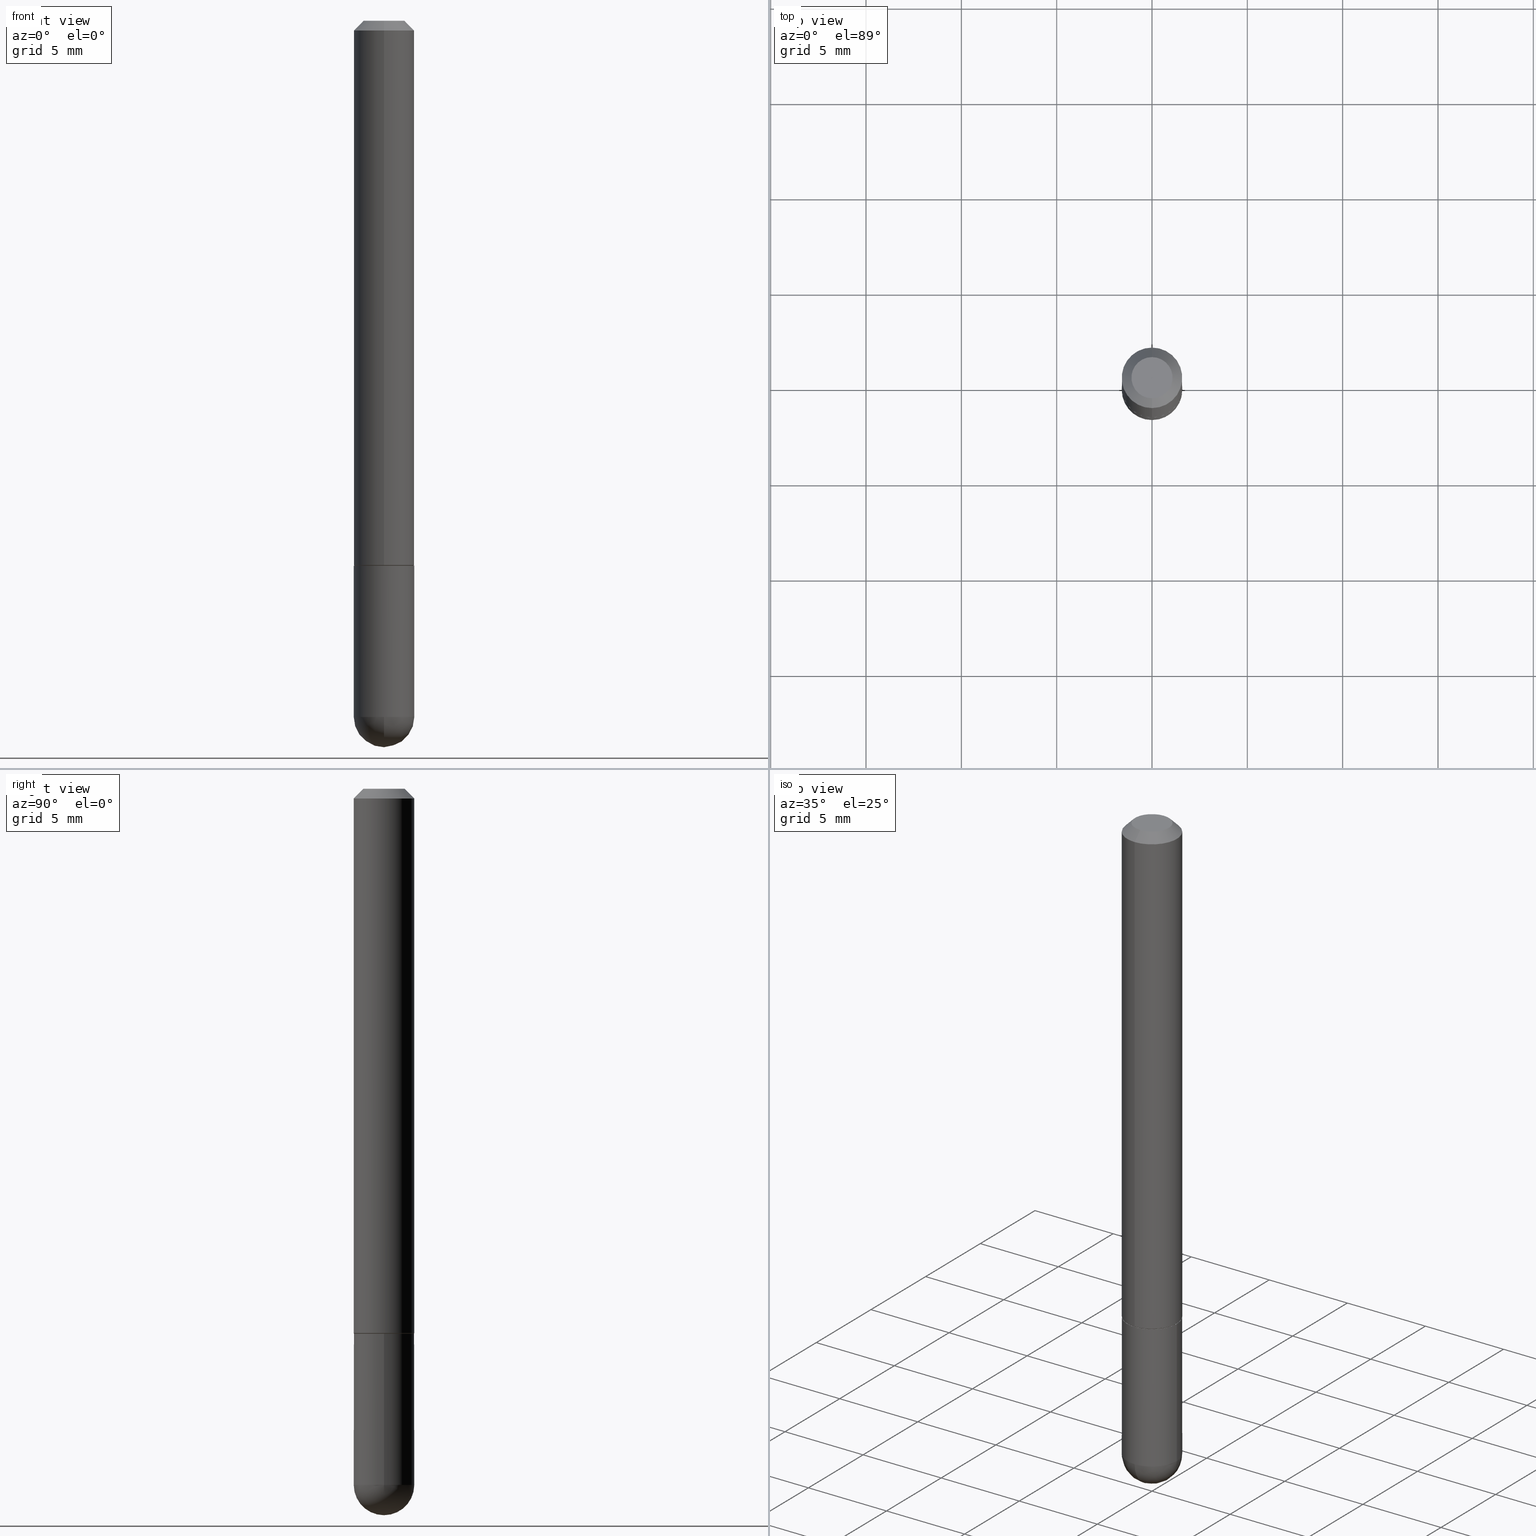
[diagram: canonical four-view strip — front | top / right | iso, engineering-drawing reading convention]
A machine part, canonical four-view strip (front | top / right | iso — engineering-drawing reading convention). The complete STEP part file that produces these views, byte-faithful:
ISO-10303-21;
HEADER;
FILE_DESCRIPTION (( 'STEP AP203' ),
    '1' );
FILE_NAME ('30378.STEP',
    '2024-02-21T16:37:49',
    ( '' ),
    ( '' ),
    'SwSTEP 2.0',
    'SolidWorks 2023',
    '' );
FILE_SCHEMA (( 'CONFIG_CONTROL_DESIGN' ));
ENDSEC;

DATA;
#1 = AXIS2_PLACEMENT_3D ( 'NONE', #296, #231, #124 ) ;
#2 = LINE ( 'NONE', #381, #290 ) ;
#3 = CARTESIAN_POINT ( 'NONE',  ( 2.729117726778545720E-29, -3.959471422352026029E-15, -1.124999999999999778 ) ) ;
#4 = CARTESIAN_POINT ( 'NONE',  ( 4.369837824924891688E-16, 0.06149999999999608558, -1.125000000000000222 ) ) ;
#5 = MANIFOLD_SOLID_BREP ( 'Body-Move/Copy2[1]', #128 ) ;
#6 = AXIS2_PLACEMENT_3D ( 'NONE', #96, #34, #383 ) ;
#7 = DIRECTION ( 'NONE',  ( -2.445468806185136597E-29, 3.491481338843145583E-15, 1.000000000000000000 ) ) ;
#8 = AXIS2_PLACEMENT_3D ( 'NONE', #166, #7, #332 ) ;
#9 = ORIENTED_EDGE ( 'NONE', *, *, #175, .F. ) ;
#10 = DIRECTION ( 'NONE',  ( 1.000000000000000000, 0.000000000000000000, 0.000000000000000000 ) ) ;
#11 = ORIENTED_EDGE ( 'NONE', *, *, #81, .T. ) ;
#12 = CALENDAR_DATE ( 2024, 21, 2 ) ;
#13 = EDGE_LOOP ( 'NONE', ( #179, #47, #108, #268 ) ) ;
#14 = CC_DESIGN_PERSON_AND_ORGANIZATION_ASSIGNMENT ( #101, #339, ( #269 ) ) ;
#15 = EDGE_LOOP ( 'NONE', ( #39, #11, #393, #261, #399 ) ) ;
#16 = AXIS2_PLACEMENT_3D ( 'NONE', #382, #95, #224 ) ;
#17 = LOCAL_TIME ( 11, 37, 49.00000000000000000, #70 ) ;
#18 = LINE ( 'NONE', #366, #71 ) ;
#19 = ORIENTED_EDGE ( 'NONE', *, *, #175, .T. ) ;
#20 = APPROVAL_DATE_TIME ( #312, #98 ) ;
#21 = VERTEX_POINT ( 'NONE', #148 ) ;
#22 = DIRECTION ( 'NONE',  ( -4.937700262165222518E-15, -0.7071067811866417196, 0.7071067811864533148 ) ) ;
#23 = CIRCLE ( 'NONE', #137, 0.06150000000000004768 ) ;
#24 = LOCAL_TIME ( 11, 37, 49.00000000000000000, #240 ) ;
#25 = DIRECTION ( 'NONE',  ( -6.982962677686265922E-15, -1.000000000000000000, 4.442029257990668187E-15 ) ) ;
#26 = CARTESIAN_POINT ( 'NONE',  ( -3.601761448830038135E-16, -0.04249999999999968386, 4.026143430372425824E-16 ) ) ;
#27 = CC_DESIGN_PERSON_AND_ORGANIZATION_ASSIGNMENT ( #387, #157, ( #186 ) ) ;
#28 = CARTESIAN_POINT ( 'NONE',  ( 2.729117726778545720E-29, -3.959471422352026029E-15, -1.124999999999999778 ) ) ;
#29 = CIRCLE ( 'NONE', #123, 0.06250000000000001388 ) ;
#30 = APPROVAL_PERSON_ORGANIZATION ( #78, #98, #143 ) ;
#31 = DIRECTION ( 'NONE',  ( 6.982962677686265922E-15, 1.000000000000000000, -4.370956789862807739E-15 ) ) ;
#32 = CYLINDRICAL_SURFACE ( 'NONE', #194, 0.06249999999999997918 ) ;
#33 = PERSON_AND_ORGANIZATION ( #255, #105 ) ;
#34 = DIRECTION ( 'NONE',  ( -2.425882423803151845E-29, 3.519530153201801222E-15, 1.000000000000000000 ) ) ;
#35 = AXIS2_PLACEMENT_3D ( 'NONE', #295, #350, #31 ) ;
#36 =( GEOMETRIC_REPRESENTATION_CONTEXT ( 3 ) GLOBAL_UNCERTAINTY_ASSIGNED_CONTEXT ( ( #213 ) ) GLOBAL_UNIT_ASSIGNED_CONTEXT ( ( #168, #239, #49 ) ) REPRESENTATION_CONTEXT ( 'NONE', 'WORKASPACE' ) );
#37 = CARTESIAN_POINT ( 'NONE',  ( 0.06249999999999995143, -4.909895632748172453E-15, -1.437500000000000222 ) ) ;
#38 = DIRECTION ( 'NONE',  ( -6.982962677686265922E-15, -1.000000000000000000, 4.442029257990668187E-15 ) ) ;
#39 = ORIENTED_EDGE ( 'NONE', *, *, #390, .T. ) ;
#40 = APPROVAL_DATE_TIME ( #135, #191 ) ;
#41 = CONICAL_SURFACE ( 'NONE', #302, 0.06249999999999995143, 0.7853981633974469467 ) ;
#42 = APPROVAL_PERSON_ORGANIZATION ( #360, #191, #362 ) ;
#43 = ADVANCED_FACE ( 'NONE', ( #89 ), #317, .T. ) ;
#44 = APPROVAL_STATUS ( 'not_yet_approved' ) ;
#45 = ORIENTED_EDGE ( 'NONE', *, *, #327, .F. ) ;
#46 = LENGTH_MEASURE_WITH_UNIT ( LENGTH_MEASURE( 0.02539999999999999897 ), #141 );
#47 = ORIENTED_EDGE ( 'NONE', *, *, #346, .T. ) ;
#48 = ADVANCED_FACE ( 'NONE', ( #219 ), #41, .T. ) ;
#49 =( NAMED_UNIT ( * ) SI_UNIT ( $, .STERADIAN. ) SOLID_ANGLE_UNIT ( ) );
#50 = CIRCLE ( 'NONE', #201, 0.06250000000000018041 ) ;
#51 = ORIENTED_EDGE ( 'NONE', *, *, #329, .F. ) ;
#52 = COORDINATED_UNIVERSAL_TIME_OFFSET ( 5, 0, .BEHIND. ) ;
#53 = ORIENTED_EDGE ( 'NONE', *, *, #346, .F. ) ;
#54 = CYLINDRICAL_SURFACE ( 'NONE', #394, 0.06249999999999997918 ) ;
#55 = LINE ( 'NONE', #218, #284 ) ;
#56 = AXIS2_PLACEMENT_3D ( 'NONE', #248, #373, #343 ) ;
#57 = AXIS2_PLACEMENT_3D ( 'NONE', #305, #199, #330 ) ;
#58 = DIRECTION ( 'NONE',  ( -2.425882423803152125E-29, 3.519530153201801222E-15, 1.000000000000000000 ) ) ;
#59 = CARTESIAN_POINT ( 'NONE',  ( 4.851764847606321206E-31, -7.039060306403626060E-17, -0.02000000000000006981 ) ) ;
#60 = CARTESIAN_POINT ( 'NONE',  ( 4.364351673554192795E-16, 0.06249999999999608646, -1.125000000000000222 ) ) ;
#61 = VECTOR ( 'NONE', #22, 39.37007874015748143 ) ;
#62 = CARTESIAN_POINT ( 'NONE',  ( -4.294522046776783901E-16, -0.06150000000000400979, -1.124999999999999556 ) ) ;
#63 = DIRECTION ( 'NONE',  ( -2.445468806185136597E-29, 3.491481338843145583E-15, 1.000000000000000000 ) ) ;
#64 = EDGE_CURVE ( 'NONE', #337, #335, #185, .T. ) ;
#65 = PLANE ( 'NONE',  #263 ) ;
#66 = EDGE_LOOP ( 'NONE', ( #51, #19, #367, #131 ) ) ;
#67 = FACE_OUTER_BOUND ( 'NONE', #241, .T. ) ;
#68 = DIRECTION ( 'NONE',  ( 0.000000000000000000, 0.000000000000000000, 1.000000000000000000 ) ) ;
#69 = EDGE_LOOP ( 'NONE', ( #234, #102 ) ) ;
#70 = COORDINATED_UNIVERSAL_TIME_OFFSET ( 5, 0, .BEHIND. ) ;
#71 = VECTOR ( 'NONE', #202, 39.37007874015748143 ) ;
#72 = VERTEX_POINT ( 'NONE', #402 ) ;
#73 = DIRECTION ( 'NONE',  ( -6.982962677686265922E-15, -1.000000000000000000, 3.519530153201801222E-15 ) ) ;
#74 = ORIENTED_EDGE ( 'NONE', *, *, #319, .T. ) ;
#75 = ADVANCED_FACE ( 'NONE', ( #182 ), #214, .T. ) ;
#76 = SHAPE_DEFINITION_REPRESENTATION ( #183, #276 ) ;
#77 = ORIENTED_EDGE ( 'NONE', *, *, #390, .F. ) ;
#78 = PERSON_AND_ORGANIZATION ( #255, #105 ) ;
#79 = VERTEX_POINT ( 'NONE', #283 ) ;
#80 = CARTESIAN_POINT ( 'NONE',  ( 3.666055405785279275E-16, 0.04249999999999968386, 1.034542800150916889E-16 ) ) ;
#81 = EDGE_CURVE ( 'NONE', #364, #337, #55, .T. ) ;
#82 = CARTESIAN_POINT ( 'NONE',  ( -4.364351673553918666E-16, -0.06250000000000002776, 2.199706345751126750E-16 ) ) ;
#83 = CARTESIAN_POINT ( 'NONE',  ( 4.405364961712898701E-16, 0.06149999999999608558, -1.125000000000000222 ) ) ;
#84 = CC_DESIGN_PERSON_AND_ORGANIZATION_ASSIGNMENT ( #206, #197, ( #189 ) ) ;
#85 = CC_DESIGN_APPROVAL ( #98, ( #186 ) ) ;
#86 = DIRECTION ( 'NONE',  ( -6.982962677686265922E-15, -1.000000000000000000, 3.551402391763545142E-15 ) ) ;
#87 = ADVANCED_FACE ( 'NONE', ( #181 ), #145, .T. ) ;
#88 = APPLICATION_CONTEXT ( 'configuration controlled 3d designs of mechanical parts and assemblies' ) ;
#89 = FACE_OUTER_BOUND ( 'NONE', #13, .T. ) ;
#90 = DIRECTION ( 'NONE',  ( 1.000000000000000000, -6.982962677686265922E-15, 4.883557194083112340E-29 ) ) ;
#91 = AXIS2_PLACEMENT_3D ( 'NONE', #249, #115, #375 ) ;
#92 = ADVANCED_FACE ( 'NONE', ( #151 ), #54, .T. ) ;
#93 = DIRECTION ( 'NONE',  ( -2.425882423803152125E-29, 3.519530153201801222E-15, 1.000000000000000000 ) ) ;
#94 = PERSON_AND_ORGANIZATION ( #255, #105 ) ;
#95 = DIRECTION ( 'NONE',  ( -2.425882423803152125E-29, 3.519530153201801222E-15, 1.000000000000000000 ) ) ;
#96 = CARTESIAN_POINT ( 'NONE',  ( 2.729117726778545720E-29, -3.959471422352026029E-15, -1.124999999999999778 ) ) ;
#97 = ORIENTED_EDGE ( 'NONE', *, *, #301, .T. ) ;
#98 = APPROVAL ( #174, 'UNSPECIFIED' ) ;
#99 = CC_DESIGN_SECURITY_CLASSIFICATION ( #129, ( #186 ) ) ;
#100 = DIRECTION ( 'NONE',  ( 1.000000000000000000, -6.982962677686269077E-15, 0.000000000000000000 ) ) ;
#101 = PERSON_AND_ORGANIZATION ( #255, #105 ) ;
#102 = ORIENTED_EDGE ( 'NONE', *, *, #329, .T. ) ;
#103 = CARTESIAN_POINT ( 'NONE',  ( -4.440892098500294840E-16, -0.06250000000000532907, -1.437500000000000000 ) ) ;
#104 = VERTEX_POINT ( 'NONE', #80 ) ;
#105 = ORGANIZATION ( 'UNSPECIFIED', 'UNSPECIFIED', '' ) ;
#106 = EDGE_LOOP ( 'NONE', ( #308, #203, #397, #126, #134 ) ) ;
#107 = DATE_AND_TIME ( #232, #180 ) ;
#108 = ORIENTED_EDGE ( 'NONE', *, *, #293, .F. ) ;
#109 = DIRECTION ( 'NONE',  ( -2.445468806185136597E-29, 3.491481338843145583E-15, 1.000000000000000000 ) ) ;
#110 = ORIENTED_EDGE ( 'NONE', *, *, #357, .T. ) ;
#111 = CARTESIAN_POINT ( 'NONE',  ( 0.000000000000000000, 0.000000000000000000, 0.000000000000000000 ) ) ;
#112 = CONICAL_SURFACE ( 'NONE', #230, 0.06249999999999995143, 0.7853981633974469467 ) ;
#113 = EDGE_CURVE ( 'NONE', #272, #120, #409, .T. ) ;
#114 = PLANE ( 'NONE',  #56 ) ;
#115 = DIRECTION ( 'NONE',  ( -2.445468806185136597E-29, 3.491481338843145583E-15, 1.000000000000000000 ) ) ;
#116 = CARTESIAN_POINT ( 'NONE',  ( 4.851764847606321206E-31, -7.039060306403626060E-17, -0.02000000000000006981 ) ) ;
#117 = EDGE_CURVE ( 'NONE', #120, #21, #215, .T. ) ;
#118 = CIRCLE ( 'NONE', #257, 0.06150000000000004768 ) ;
#119 = AXIS2_PLACEMENT_3D ( 'NONE', #388, #164, #310 ) ;
#120 = VERTEX_POINT ( 'NONE', #405 ) ;
#121 = FACE_OUTER_BOUND ( 'NONE', #207, .T. ) ;
#122 = CARTESIAN_POINT ( 'NONE',  ( 2.726691844354743262E-29, -3.955951892198824713E-15, -1.124000000000000110 ) ) ;
#123 = AXIS2_PLACEMENT_3D ( 'NONE', #262, #159, #100 ) ;
#124 = DIRECTION ( 'NONE',  ( 1.000000000000000000, -6.982962677686268288E-15, 0.000000000000000000 ) ) ;
#125 = PLANE ( 'NONE',  #6 ) ;
#126 = ORIENTED_EDGE ( 'NONE', *, *, #307, .T. ) ;
#127 = APPLICATION_CONTEXT ( 'configuration controlled 3d designs of mechanical parts and assemblies' ) ;
#128 = CLOSED_SHELL ( 'NONE', ( #92, #225, #235, #220, #208 ) ) ;
#129 = SECURITY_CLASSIFICATION ( '', '', #258 ) ;
#130 = CARTESIAN_POINT ( 'NONE',  ( 3.339755826017505008E-29, -5.707577355157432999E-15, -1.500000000000000222 ) ) ;
#131 = ORIENTED_EDGE ( 'NONE', *, *, #253, .F. ) ;
#132 = CARTESIAN_POINT ( 'NONE',  ( -0.06249999999999995143, -4.029371255542718167E-15, -1.437500000000000222 ) ) ;
#133 = PERSON_AND_ORGANIZATION_ROLE ( 'classification_officer' ) ;
#134 = ORIENTED_EDGE ( 'NONE', *, *, #64, .F. ) ;
#135 = DATE_AND_TIME ( #12, #17 ) ;
#136 = ORIENTED_EDGE ( 'NONE', *, *, #117, .T. ) ;
#137 = AXIS2_PLACEMENT_3D ( 'NONE', #154, #196, #38 ) ;
#138 = CARTESIAN_POINT ( 'NONE',  ( -6.138314889504602540E-45, 8.905618892110033867E-31, 2.530343115261671418E-16 ) ) ;
#139 = AXIS2_PLACEMENT_3D ( 'NONE', #275, #109, #395 ) ;
#140 = VERTEX_POINT ( 'NONE', #83 ) ;
#141 =( LENGTH_UNIT ( ) NAMED_UNIT ( * ) SI_UNIT ( $, .METRE. ) );
#142 = ORIENTED_EDGE ( 'NONE', *, *, #242, .F. ) ;
#143 = APPROVAL_ROLE ( '' ) ;
#144 = DIRECTION ( 'NONE',  ( 2.425882423803152125E-29, -3.519530153201801222E-15, -1.000000000000000000 ) ) ;
#145 = CONICAL_SURFACE ( 'NONE', #344, 0.06150000000000004768, 0.7853981633975849475 ) ;
#146 = CARTESIAN_POINT ( 'NONE',  ( 0.000000000000000000, 0.000000000000000000, 0.000000000000000000 ) ) ;
#147 = CIRCLE ( 'NONE', #153, 0.04249999999999968386 ) ;
#148 = CARTESIAN_POINT ( 'NONE',  ( -4.287811248607198352E-16, -0.06250000000000001388, -0.01999999999999984776 ) ) ;
#149 = ADVANCED_FACE ( 'NONE', ( #250 ), #114, .F. ) ;
#150 = LINE ( 'NONE', #289, #229 ) ;
#151 = FACE_OUTER_BOUND ( 'NONE', #15, .T. ) ;
#152 = AXIS2_PLACEMENT_3D ( 'NONE', #351, #93, #324 ) ;
#153 = AXIS2_PLACEMENT_3D ( 'NONE', #138, #233, #73 ) ;
#154 = CARTESIAN_POINT ( 'NONE',  ( 2.729117726778545720E-29, -3.959471422352026029E-15, -1.124999999999999778 ) ) ;
#155 = CC_DESIGN_PERSON_AND_ORGANIZATION_ASSIGNMENT ( #33, #412, ( #186 ) ) ;
#156 = DIRECTION ( 'NONE',  ( -1.000000000000000000, 6.982962677686265922E-15, -4.876176775795935793E-29 ) ) ;
#157 = PERSON_AND_ORGANIZATION_ROLE ( 'creator' ) ;
#158 = EDGE_CURVE ( 'NONE', #228, #79, #178, .T. ) ;
#159 = DIRECTION ( 'NONE',  ( -2.445468806185136597E-29, 3.491481338843145583E-15, 1.000000000000000000 ) ) ;
#160 = AXIS2_PLACEMENT_3D ( 'NONE', #345, #58, #318 ) ;
#161 = SPHERICAL_SURFACE ( 'NONE', #380, 0.06250000000000018041 ) ;
#162 = ADVANCED_FACE ( 'NONE', ( #217 ), #209, .T. ) ;
#163 = FACE_OUTER_BOUND ( 'NONE', #106, .T. ) ;
#164 = DIRECTION ( 'NONE',  ( -2.425882423803152125E-29, 3.519530153201801222E-15, 1.000000000000000000 ) ) ;
#165 = ORIENTED_EDGE ( 'NONE', *, *, #113, .F. ) ;
#166 = CARTESIAN_POINT ( 'NONE',  ( 3.515361408891134418E-29, -5.019004424587023131E-15, -1.437500000000000222 ) ) ;
#167 = EDGE_LOOP ( 'NONE', ( #53, #97, #136, #226 ) ) ;
#168 =( CONVERSION_BASED_UNIT ( 'INCH', #46 ) LENGTH_UNIT ( ) NAMED_UNIT ( #270 ) );
#169 = ORIENTED_EDGE ( 'NONE', *, *, #277, .T. ) ;
#170 = CIRCLE ( 'NONE', #316, 0.06250000000000012490 ) ;
#171 = VECTOR ( 'NONE', #379, 39.37007874015748143 ) ;
#172 = APPLICATION_PROTOCOL_DEFINITION ( 'international standard', 'config_control_design', 1994, #127 ) ;
#173 = VERTEX_POINT ( 'NONE', #26 ) ;
#174 = APPROVAL_STATUS ( 'not_yet_approved' ) ;
#175 = EDGE_CURVE ( 'NONE', #173, #21, #150, .T. ) ;
#176 = DIRECTION ( 'NONE',  ( 6.982962677686265922E-15, 1.000000000000000000, -3.551402391763545142E-15 ) ) ;
#177 = DIRECTION ( 'NONE',  ( -2.445468806185136597E-29, 3.491481338843145583E-15, 1.000000000000000000 ) ) ;
#178 = CIRCLE ( 'NONE', #91, 0.06249999999999995143 ) ;
#179 = ORIENTED_EDGE ( 'NONE', *, *, #341, .T. ) ;
#180 = LOCAL_TIME ( 11, 37, 49.00000000000000000, #278 ) ;
#181 = FACE_OUTER_BOUND ( 'NONE', #389, .T. ) ;
#182 = FACE_OUTER_BOUND ( 'NONE', #167, .T. ) ;
#183 = PRODUCT_DEFINITION_SHAPE ( 'NONE', 'NONE',  #269 ) ;
#184 = DIRECTION ( 'NONE',  ( -6.982962677686265133E-15, -1.000000000000000000, 4.370956789862812472E-15 ) ) ;
#185 = CIRCLE ( 'NONE', #222, 0.06250000000000001388 ) ;
#186 = PRODUCT_DEFINITION_FORMATION_WITH_SPECIFIED_SOURCE ( 'ANY', '', #189, .NOT_KNOWN. ) ;
#187 = APPROVAL ( #391, 'UNSPECIFIED' ) ;
#188 = DIRECTION ( 'NONE',  ( 2.438088387897960049E-29, -3.491481338843145188E-15, -1.000000000000000000 ) ) ;
#189 = PRODUCT ( '30378', '30378', '', ( #398 ) ) ;
#190 = DIRECTION ( 'NONE',  ( -1.000000000000000000, 6.982962677686265922E-15, -4.883557194083112340E-29 ) ) ;
#191 = APPROVAL ( #44, 'UNSPECIFIED' ) ;
#192 = CARTESIAN_POINT ( 'NONE',  ( 3.184241630977247611E-29, -5.493186792727071849E-15, -1.437500000000000000 ) ) ;
#193 = ORIENTED_EDGE ( 'NONE', *, *, #158, .F. ) ;
#194 = AXIS2_PLACEMENT_3D ( 'NONE', #254, #63, #322 ) ;
#195 = EDGE_CURVE ( 'NONE', #300, #21, #407, .T. ) ;
#196 = DIRECTION ( 'NONE',  ( -2.425882423803152125E-29, 3.519530153201801222E-15, 1.000000000000000000 ) ) ;
#197 = PERSON_AND_ORGANIZATION_ROLE ( 'design_owner' ) ;
#198 = CC_DESIGN_PERSON_AND_ORGANIZATION_ASSIGNMENT ( #94, #133, ( #129 ) ) ;
#199 = DIRECTION ( 'NONE',  ( -1.000000000000000000, 7.105427357601001070E-15, -4.926315508542082329E-29 ) ) ;
#200 = ORIENTED_EDGE ( 'NONE', *, *, #253, .T. ) ;
#201 = AXIS2_PLACEMENT_3D ( 'NONE', #297, #90, #385 ) ;
#202 = DIRECTION ( 'NONE',  ( -2.425882423803152125E-29, 3.519530153201801222E-15, 1.000000000000000000 ) ) ;
#203 = ORIENTED_EDGE ( 'NONE', *, *, #400, .T. ) ;
#204 = DIRECTION ( 'NONE',  ( 6.982962677686265922E-15, 1.000000000000000000, -3.551402391763545142E-15 ) ) ;
#205 = ORIENTED_EDGE ( 'NONE', *, *, #227, .F. ) ;
#206 = PERSON_AND_ORGANIZATION ( #255, #105 ) ;
#207 = EDGE_LOOP ( 'NONE', ( #142, #110, #306, #77 ) ) ;
#208 = ADVANCED_FACE ( 'NONE', ( #163 ), #32, .T. ) ;
#209 = CONICAL_SURFACE ( 'NONE', #160, 0.06150000000000004768, 0.7853981633975849475 ) ;
#210 = CC_DESIGN_APPROVAL ( #191, ( #269 ) ) ;
#211 = COORDINATED_UNIVERSAL_TIME_OFFSET ( 5, 0, .BEHIND. ) ;
#212 = ORIENTED_EDGE ( 'NONE', *, *, #265, .T. ) ;
#213 = UNCERTAINTY_MEASURE_WITH_UNIT (LENGTH_MEASURE( 1.000000000000000082E-05 ), #168, 'distance_accuracy_value', 'NONE');
#214 = CYLINDRICAL_SURFACE ( 'NONE', #338, 0.06250000000000002776 ) ;
#215 = LINE ( 'NONE', #82, #309 ) ;
#216 = AXIS2_PLACEMENT_3D ( 'NONE', #116, #377, #86 ) ;
#217 = FACE_OUTER_BOUND ( 'NONE', #384, .T. ) ;
#218 = CARTESIAN_POINT ( 'NONE',  ( -0.06249999999999997918, 4.440892098500624683E-16, -3.074334431409315413E-30 ) ) ;
#219 = FACE_OUTER_BOUND ( 'NONE', #264, .T. ) ;
#220 = ADVANCED_FACE ( 'NONE', ( #256 ), #65, .F. ) ;
#221 = SPHERICAL_SURFACE ( 'NONE', #35, 0.06250000000000018041 ) ;
#222 = AXIS2_PLACEMENT_3D ( 'NONE', #252, #287, #292 ) ;
#223 = FACE_OUTER_BOUND ( 'NONE', #281, .T. ) ;
#224 = DIRECTION ( 'NONE',  ( -6.982962677686265922E-15, -1.000000000000000000, 3.519530153201801222E-15 ) ) ;
#225 = ADVANCED_FACE ( 'NONE', ( #121 ), #221, .T. ) ;
#226 = ORIENTED_EDGE ( 'NONE', *, *, #195, .F. ) ;
#227 = EDGE_CURVE ( 'NONE', #140, #72, #353, .T. ) ;
#228 = VERTEX_POINT ( 'NONE', #37 ) ;
#229 = VECTOR ( 'NONE', #406, 39.37007874015748143 ) ;
#230 = AXIS2_PLACEMENT_3D ( 'NONE', #334, #266, #204 ) ;
#231 = DIRECTION ( 'NONE',  ( -2.445468806185136597E-29, 3.491481338843145583E-15, 1.000000000000000000 ) ) ;
#232 = CALENDAR_DATE ( 2024, 21, 2 ) ;
#233 = DIRECTION ( 'NONE',  ( -2.425882423803152125E-29, 3.519530153201801222E-15, 1.000000000000000000 ) ) ;
#234 = ORIENTED_EDGE ( 'NONE', *, *, #363, .T. ) ;
#235 = ADVANCED_FACE ( 'NONE', ( #67 ), #161, .T. ) ;
#236 = ORIENTED_EDGE ( 'NONE', *, *, #277, .F. ) ;
#237 = APPLICATION_PROTOCOL_DEFINITION ( 'international standard', 'config_control_design', 1994, #88 ) ;
#238 = ORIENTED_EDGE ( 'NONE', *, *, #265, .F. ) ;
#239 =( NAMED_UNIT ( * ) PLANE_ANGLE_UNIT ( ) SI_UNIT ( $, .RADIAN. ) );
#240 = COORDINATED_UNIVERSAL_TIME_OFFSET ( 5, 0, .BEHIND. ) ;
#241 = EDGE_LOOP ( 'NONE', ( #244, #311, #193, #45 ) ) ;
#242 = EDGE_CURVE ( 'NONE', #340, #79, #50, .T. ) ;
#243 = CALENDAR_DATE ( 2024, 21, 2 ) ;
#244 = ORIENTED_EDGE ( 'NONE', *, *, #357, .F. ) ;
#245 = AXIS2_PLACEMENT_3D ( 'NONE', #347, #313, #348 ) ;
#246 = CIRCLE ( 'NONE', #8, 0.06249999999999995143 ) ;
#247 = DIRECTION ( 'NONE',  ( 1.000000000000000000, -6.982962677686267499E-15, 4.876176775795936353E-29 ) ) ;
#248 = CARTESIAN_POINT ( 'NONE',  ( 2.967759138016640869E-16, 0.04249999999999968386, -2.306287574799186970E-17 ) ) ;
#249 = CARTESIAN_POINT ( 'NONE',  ( 3.515361408891134418E-29, -5.019004424587023131E-15, -1.437500000000000222 ) ) ;
#250 = FACE_OUTER_BOUND ( 'NONE', #69, .T. ) ;
#251 = CC_DESIGN_DATE_AND_TIME_ASSIGNMENT ( #401, #370, ( #269 ) ) ;
#252 = CARTESIAN_POINT ( 'NONE',  ( 2.751152406958278111E-29, -3.927916506198538435E-15, -1.124999999999999778 ) ) ;
#253 = EDGE_CURVE ( 'NONE', #104, #300, #328, .T. ) ;
#254 = CARTESIAN_POINT ( 'NONE',  ( 0.000000000000000000, 0.000000000000000000, 0.000000000000000000 ) ) ;
#255 = PERSON ( 'UNSPECIFIED', 'UNSPECIFIED', 'UNSPECIFIED', ('UNSPECIFIED'), ('UNSPECIFIED'), ('UNSPECIFIED') ) ;
#256 = FACE_OUTER_BOUND ( 'NONE', #331, .T. ) ;
#257 = AXIS2_PLACEMENT_3D ( 'NONE', #3, #325, #411 ) ;
#258 = SECURITY_CLASSIFICATION_LEVEL ( 'unclassified' ) ;
#259 = DIRECTION ( 'NONE',  ( -2.445468806185136877E-29, 3.491481338843145188E-15, 1.000000000000000000 ) ) ;
#260 = DIRECTION ( 'NONE',  ( -2.425882423803152125E-29, 3.519530153201801222E-15, 1.000000000000000000 ) ) ;
#261 = ORIENTED_EDGE ( 'NONE', *, *, #307, .F. ) ;
#262 = CARTESIAN_POINT ( 'NONE',  ( 2.751152406958278111E-29, -3.927916506198538435E-15, -1.124999999999999778 ) ) ;
#263 = AXIS2_PLACEMENT_3D ( 'NONE', #60, #188, #156 ) ;
#264 = EDGE_LOOP ( 'NONE', ( #9, #355, #200, #392 ) ) ;
#265 = EDGE_CURVE ( 'NONE', #140, #272, #23, .T. ) ;
#266 = DIRECTION ( 'NONE',  ( 2.425882423803152125E-29, -3.519530153201801222E-15, -1.000000000000000000 ) ) ;
#267 = APPROVAL_DATE_TIME ( #336, #187 ) ;
#268 = ORIENTED_EDGE ( 'NONE', *, *, #117, .F. ) ;
#269 = PRODUCT_DEFINITION ( 'UNKNOWN', '', #186, #273 ) ;
#270 = DIMENSIONAL_EXPONENTS ( 1.000000000000000000, 0.000000000000000000, 0.000000000000000000, 0.000000000000000000, 0.000000000000000000, 0.000000000000000000, 0.000000000000000000 ) ;
#271 = CARTESIAN_POINT ( 'NONE',  ( -0.06250000000000001388, -4.029371255542718167E-15, -1.124999999999999778 ) ) ;
#272 = VERTEX_POINT ( 'NONE', #62 ) ;
#273 = DESIGN_CONTEXT ( 'detailed design', #127, 'design' ) ;
#274 = LOCAL_TIME ( 11, 37, 49.00000000000000000, #211 ) ;
#275 = CARTESIAN_POINT ( 'NONE',  ( 3.515361408891134418E-29, -5.019004424587023131E-15, -1.437500000000000222 ) ) ;
#276 = ADVANCED_BREP_SHAPE_REPRESENTATION ( '30378', ( #5, #288, #321 ), #36 ) ;
#277 = EDGE_CURVE ( 'NONE', #272, #140, #118, .T. ) ;
#278 = COORDINATED_UNIVERSAL_TIME_OFFSET ( 5, 0, .BEHIND. ) ;
#279 = ORIENTED_EDGE ( 'NONE', *, *, #227, .T. ) ;
#280 = DATE_TIME_ROLE ( 'classification_date' ) ;
#281 = EDGE_LOOP ( 'NONE', ( #236, #238 ) ) ;
#282 = CALENDAR_DATE ( 2024, 21, 2 ) ;
#283 = CARTESIAN_POINT ( 'NONE',  ( 4.364351673554256397E-16, 0.06249999999999480971, -1.437500000000000444 ) ) ;
#284 = VECTOR ( 'NONE', #320, 39.37007874015748143 ) ;
#285 = APPROVAL_PERSON_ORGANIZATION ( #396, #187, #359 ) ;
#286 = DIRECTION ( 'NONE',  ( -2.425882423803152125E-29, 3.519530153201801222E-15, 1.000000000000000000 ) ) ;
#287 = DIRECTION ( 'NONE',  ( -2.445468806185136597E-29, 3.491481338843145583E-15, 1.000000000000000000 ) ) ;
#288 = MANIFOLD_SOLID_BREP ( 'Body-Move/Copy2[2]', #403 ) ;
#289 = CARTESIAN_POINT ( 'NONE',  ( -4.287811248607198352E-16, -0.06250000000000001388, -0.01999999999999984776 ) ) ;
#290 = VECTOR ( 'NONE', #259, 39.37007874015748143 ) ;
#291 = CC_DESIGN_APPROVAL ( #187, ( #129 ) ) ;
#292 = DIRECTION ( 'NONE',  ( 1.000000000000000000, -6.982962677686269077E-15, 0.000000000000000000 ) ) ;
#293 = EDGE_CURVE ( 'NONE', #21, #300, #408, .T. ) ;
#294 = DIRECTION ( 'NONE',  ( 6.982962677686265922E-15, 1.000000000000000000, -4.370956789862807739E-15 ) ) ;
#295 = CARTESIAN_POINT ( 'NONE',  ( 3.184241630977247611E-29, -5.493186792727071849E-15, -1.437500000000000000 ) ) ;
#296 = CARTESIAN_POINT ( 'NONE',  ( 3.515361408891134418E-29, -5.019004424587023131E-15, -1.437500000000000222 ) ) ;
#297 = CARTESIAN_POINT ( 'NONE',  ( 3.184241630977247611E-29, -5.493186792727071849E-15, -1.437500000000000000 ) ) ;
#298 = CARTESIAN_POINT ( 'NONE',  ( 4.364351673553917187E-16, 0.06249999999999988204, -0.02000000000000029185 ) ) ;
#299 = FACE_OUTER_BOUND ( 'NONE', #66, .T. ) ;
#300 = VERTEX_POINT ( 'NONE', #298 ) ;
#301 = EDGE_CURVE ( 'NONE', #72, #120, #170, .T. ) ;
#302 = AXIS2_PLACEMENT_3D ( 'NONE', #59, #144, #176 ) ;
#303 = CIRCLE ( 'NONE', #57, 0.06250000000000018041 ) ;
#304 = ORIENTED_EDGE ( 'NONE', *, *, #113, .T. ) ;
#305 = CARTESIAN_POINT ( 'NONE',  ( 3.184241630977247611E-29, -5.493186792727071849E-15, -1.437500000000000000 ) ) ;
#306 = ORIENTED_EDGE ( 'NONE', *, *, #400, .F. ) ;
#307 = EDGE_CURVE ( 'NONE', #228, #335, #2, .T. ) ;
#308 = ORIENTED_EDGE ( 'NONE', *, *, #81, .F. ) ;
#309 = VECTOR ( 'NONE', #404, 39.37007874015748143 ) ;
#310 = DIRECTION ( 'NONE',  ( -6.982962677686265133E-15, -1.000000000000000000, 4.370956789862812472E-15 ) ) ;
#311 = ORIENTED_EDGE ( 'NONE', *, *, #242, .T. ) ;
#312 = DATE_AND_TIME ( #282, #274 ) ;
#313 = DIRECTION ( 'NONE',  ( -2.425882423803152125E-29, 3.519530153201801222E-15, 1.000000000000000000 ) ) ;
#314 = CARTESIAN_POINT ( 'NONE',  ( -4.294522046776783901E-16, -0.06150000000000400979, -1.124999999999999556 ) ) ;
#315 = ADVANCED_FACE ( 'NONE', ( #223 ), #125, .F. ) ;
#316 = AXIS2_PLACEMENT_3D ( 'NONE', #122, #260, #184 ) ;
#317 = CYLINDRICAL_SURFACE ( 'NONE', #245, 0.06250000000000002776 ) ;
#318 = DIRECTION ( 'NONE',  ( -6.982962677686265922E-15, -1.000000000000000000, 4.442029257990668187E-15 ) ) ;
#319 = EDGE_CURVE ( 'NONE', #335, #337, #29, .T. ) ;
#320 = DIRECTION ( 'NONE',  ( -2.445468806185136877E-29, 3.491481338843145188E-15, 1.000000000000000000 ) ) ;
#321 = AXIS2_PLACEMENT_3D ( 'NONE', #358, #68, #10 ) ;
#322 = DIRECTION ( 'NONE',  ( 1.000000000000000000, -6.982962677686267499E-15, 4.876176775795936353E-29 ) ) ;
#323 = CARTESIAN_POINT ( 'NONE',  ( 4.364351673553917187E-16, 0.06249999999999988204, -0.02000000000000029185 ) ) ;
#324 = DIRECTION ( 'NONE',  ( -6.982962677686265922E-15, -1.000000000000000000, 3.551402391763545142E-15 ) ) ;
#325 = DIRECTION ( 'NONE',  ( -2.425882423803152125E-29, 3.519530153201801222E-15, 1.000000000000000000 ) ) ;
#326 = CIRCLE ( 'NONE', #119, 0.06250000000000012490 ) ;
#327 = EDGE_CURVE ( 'NONE', #372, #228, #365, .T. ) ;
#328 = LINE ( 'NONE', #323, #354 ) ;
#329 = EDGE_CURVE ( 'NONE', #173, #104, #376, .T. ) ;
#330 = DIRECTION ( 'NONE',  ( -7.105427357601001859E-15, -1.000000000000000000, 0.000000000000000000 ) ) ;
#331 = EDGE_LOOP ( 'NONE', ( #74, #361 ) ) ;
#332 = DIRECTION ( 'NONE',  ( 1.000000000000000000, -6.982962677686268288E-15, 0.000000000000000000 ) ) ;
#333 = ORIENTED_EDGE ( 'NONE', *, *, #341, .F. ) ;
#334 = CARTESIAN_POINT ( 'NONE',  ( 4.851764847606321206E-31, -7.039060306403626060E-17, -0.02000000000000006981 ) ) ;
#335 = VERTEX_POINT ( 'NONE', #352 ) ;
#336 = DATE_AND_TIME ( #368, #24 ) ;
#337 = VERTEX_POINT ( 'NONE', #271 ) ;
#338 = AXIS2_PLACEMENT_3D ( 'NONE', #111, #378, #342 ) ;
#339 = PERSON_AND_ORGANIZATION_ROLE ( 'creator' ) ;
#340 = VERTEX_POINT ( 'NONE', #130 ) ;
#341 = EDGE_CURVE ( 'NONE', #120, #72, #326, .T. ) ;
#342 = DIRECTION ( 'NONE',  ( -6.982962677686266711E-15, -1.000000000000000000, 3.519530153201801222E-15 ) ) ;
#343 = DIRECTION ( 'NONE',  ( 6.982962677686265922E-15, 1.000000000000000000, -3.519530153201801222E-15 ) ) ;
#344 = AXIS2_PLACEMENT_3D ( 'NONE', #28, #286, #25 ) ;
#345 = CARTESIAN_POINT ( 'NONE',  ( 2.729117726778545720E-29, -3.959471422352026029E-15, -1.124999999999999778 ) ) ;
#346 = EDGE_CURVE ( 'NONE', #72, #300, #18, .T. ) ;
#347 = CARTESIAN_POINT ( 'NONE',  ( 0.000000000000000000, 0.000000000000000000, 0.000000000000000000 ) ) ;
#348 = DIRECTION ( 'NONE',  ( -6.982962677686266711E-15, -1.000000000000000000, 3.519530153201801222E-15 ) ) ;
#349 = LOCAL_TIME ( 11, 37, 49.00000000000000000, #52 ) ;
#350 = DIRECTION ( 'NONE',  ( -1.000000000000000000, 6.982962677686265922E-15, -4.883557194083112340E-29 ) ) ;
#351 = CARTESIAN_POINT ( 'NONE',  ( 4.851764847606321206E-31, -7.039060306403626060E-17, -0.02000000000000006981 ) ) ;
#352 = CARTESIAN_POINT ( 'NONE',  ( 0.06250000000000001388, -4.364351673553930105E-15, -1.124999999999999778 ) ) ;
#353 = LINE ( 'NONE', #4, #171 ) ;
#354 = VECTOR ( 'NONE', #410, 39.37007874015748143 ) ;
#355 = ORIENTED_EDGE ( 'NONE', *, *, #363, .F. ) ;
#356 = CC_DESIGN_DATE_AND_TIME_ASSIGNMENT ( #107, #280, ( #129 ) ) ;
#357 = EDGE_CURVE ( 'NONE', #340, #372, #303, .T. ) ;
#358 = CARTESIAN_POINT ( 'NONE',  ( 0.000000000000000000, 0.000000000000000000, 0.000000000000000000 ) ) ;
#359 = APPROVAL_ROLE ( '' ) ;
#360 = PERSON_AND_ORGANIZATION ( #255, #105 ) ;
#361 = ORIENTED_EDGE ( 'NONE', *, *, #64, .T. ) ;
#362 = APPROVAL_ROLE ( '' ) ;
#363 = EDGE_CURVE ( 'NONE', #104, #173, #147, .T. ) ;
#364 = VERTEX_POINT ( 'NONE', #132 ) ;
#365 = CIRCLE ( 'NONE', #1, 0.06249999999999995143 ) ;
#366 = CARTESIAN_POINT ( 'NONE',  ( 4.440892098500628134E-16, 0.06250000000000002776, -2.199706345751126750E-16 ) ) ;
#367 = ORIENTED_EDGE ( 'NONE', *, *, #293, .T. ) ;
#368 = CALENDAR_DATE ( 2024, 21, 2 ) ;
#369 = ORIENTED_EDGE ( 'NONE', *, *, #301, .F. ) ;
#370 = DATE_TIME_ROLE ( 'creation_date' ) ;
#371 = ADVANCED_FACE ( 'NONE', ( #299 ), #112, .T. ) ;
#372 = VERTEX_POINT ( 'NONE', #103 ) ;
#373 = DIRECTION ( 'NONE',  ( 2.425882423803151845E-29, -3.519530153201801222E-15, -1.000000000000000000 ) ) ;
#374 = PRODUCT_RELATED_PRODUCT_CATEGORY ( 'detail', '', ( #189 ) ) ;
#375 = DIRECTION ( 'NONE',  ( 1.000000000000000000, -6.982962677686268288E-15, 0.000000000000000000 ) ) ;
#376 = CIRCLE ( 'NONE', #16, 0.04249999999999968386 ) ;
#377 = DIRECTION ( 'NONE',  ( -2.425882423803152125E-29, 3.519530153201801222E-15, 1.000000000000000000 ) ) ;
#378 = DIRECTION ( 'NONE',  ( -2.425882423803152125E-29, 3.519530153201801222E-15, 1.000000000000000000 ) ) ;
#379 = DIRECTION ( 'NONE',  ( 5.024295867788748699E-15, 0.7071067811866466046, 0.7071067811864484298 ) ) ;
#380 = AXIS2_PLACEMENT_3D ( 'NONE', #192, #190, #294 ) ;
#381 = CARTESIAN_POINT ( 'NONE',  ( 0.06249999999999997918, -4.364351673553915708E-16, 3.047610484872459170E-30 ) ) ;
#382 = CARTESIAN_POINT ( 'NONE',  ( -6.138314889504602540E-45, 8.905618892110033867E-31, 2.530343115261671418E-16 ) ) ;
#383 = DIRECTION ( 'NONE',  ( -6.982962677686265922E-15, -1.000000000000000000, 3.519530153201801222E-15 ) ) ;
#384 = EDGE_LOOP ( 'NONE', ( #205, #212, #304, #369 ) ) ;
#385 = DIRECTION ( 'NONE',  ( 6.982962677686266711E-15, 1.000000000000000000, 0.000000000000000000 ) ) ;
#386 = CIRCLE ( 'NONE', #139, 0.06249999999999995143 ) ;
#387 = PERSON_AND_ORGANIZATION ( #255, #105 ) ;
#388 = CARTESIAN_POINT ( 'NONE',  ( 2.726691844354743262E-29, -3.955951892198824713E-15, -1.124000000000000110 ) ) ;
#389 = EDGE_LOOP ( 'NONE', ( #169, #279, #333, #165 ) ) ;
#390 = EDGE_CURVE ( 'NONE', #79, #364, #386, .T. ) ;
#391 = APPROVAL_STATUS ( 'not_yet_approved' ) ;
#392 = ORIENTED_EDGE ( 'NONE', *, *, #195, .T. ) ;
#393 = ORIENTED_EDGE ( 'NONE', *, *, #319, .F. ) ;
#394 = AXIS2_PLACEMENT_3D ( 'NONE', #146, #177, #247 ) ;
#395 = DIRECTION ( 'NONE',  ( 1.000000000000000000, -6.982962677686268288E-15, 0.000000000000000000 ) ) ;
#396 = PERSON_AND_ORGANIZATION ( #255, #105 ) ;
#397 = ORIENTED_EDGE ( 'NONE', *, *, #327, .T. ) ;
#398 = MECHANICAL_CONTEXT ( 'NONE', #88, 'mechanical' ) ;
#399 = ORIENTED_EDGE ( 'NONE', *, *, #158, .T. ) ;
#400 = EDGE_CURVE ( 'NONE', #364, #372, #246, .T. ) ;
#401 = DATE_AND_TIME ( #243, #349 ) ;
#402 = CARTESIAN_POINT ( 'NONE',  ( 4.440892098500770129E-16, 0.06249999999999616279, -1.124000000000000332 ) ) ;
#403 = CLOSED_SHELL ( 'NONE', ( #87, #43, #371, #48, #75, #162, #315, #149 ) ) ;
#404 = DIRECTION ( 'NONE',  ( -2.425882423803152125E-29, 3.519530153201801222E-15, 1.000000000000000000 ) ) ;
#405 = CARTESIAN_POINT ( 'NONE',  ( -4.364351673553651440E-16, -0.06250000000000406619, -1.123999999999999888 ) ) ;
#406 = DIRECTION ( 'NONE',  ( -4.851104656540957175E-15, -0.7071067811865490160, -0.7071067811865460184 ) ) ;
#407 = CIRCLE ( 'NONE', #216, 0.06249999999999995143 ) ;
#408 = CIRCLE ( 'NONE', #152, 0.06249999999999995143 ) ;
#409 = LINE ( 'NONE', #314, #61 ) ;
#410 = DIRECTION ( 'NONE',  ( 4.937700262164540942E-15, 0.7071067811865441310, -0.7071067811865509034 ) ) ;
#411 = DIRECTION ( 'NONE',  ( -6.982962677686265922E-15, -1.000000000000000000, 4.442029257990668187E-15 ) ) ;
#412 = PERSON_AND_ORGANIZATION_ROLE ( 'design_supplier' ) ;
ENDSEC;
END-ISO-10303-21;
